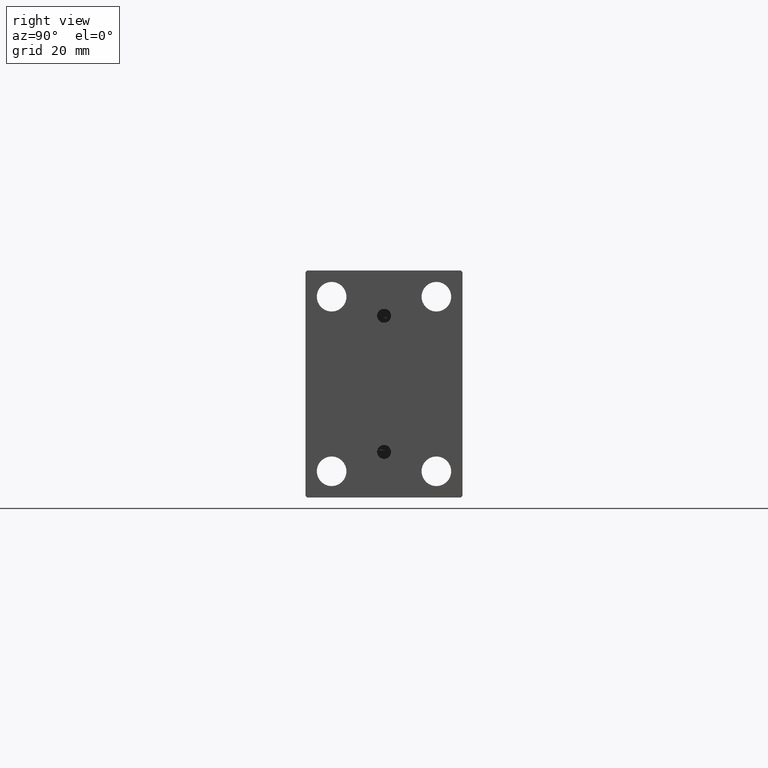
[diagram: clean part render]
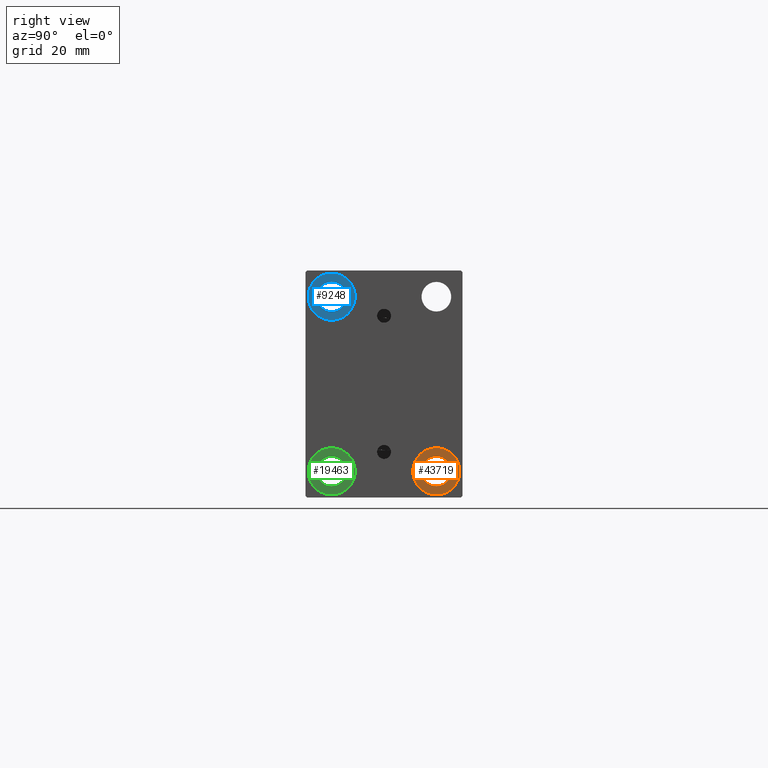
[diagram: same view with three faces highlighted in distinct colors, each labeled with its STEP entity id]
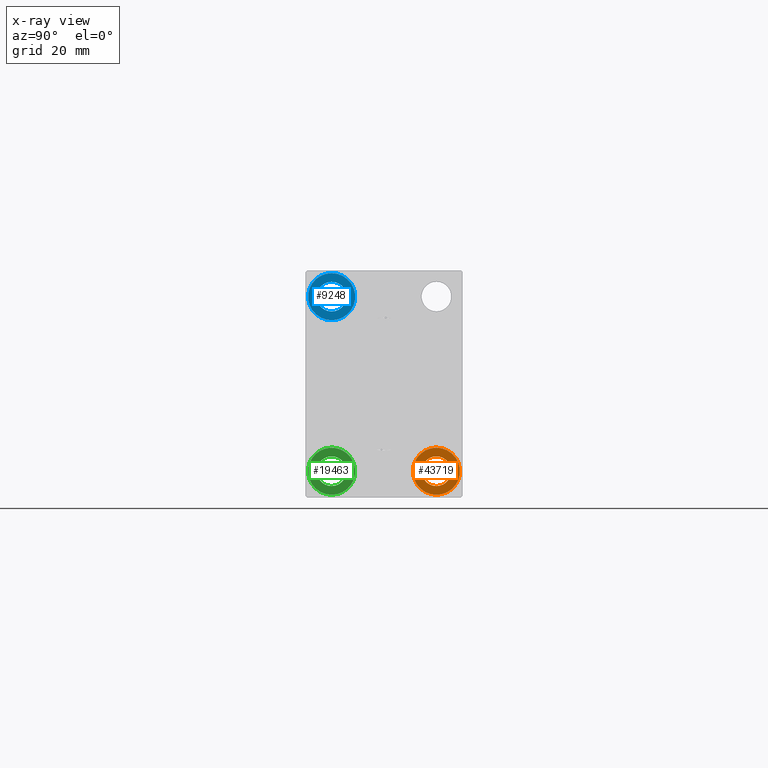
[diagram: x-ray of the same camera — body ghosted, the three highlighted faces saturated]
A machine part, right view with three faces highlighted in distinct colors.
The next image is the same camera in x-ray (body ghosted, the three faces saturated) — at least one of them is partly hidden behind the body in this view.
Their STEP definitions:

[orange] entity #43719 — the highlighted planar face has unit normal (1, 0, 0).
#2748 = VERTEX_POINT ( 'NONE', #37593 ) ;
#5035 = CARTESIAN_POINT ( 'NONE',  ( 121.0000000000000142, 14.99999999999999645, -31.75000000000000000 ) ) ;
#5754 = AXIS2_PLACEMENT_3D ( 'NONE', #35567, #38874, #31328 ) ;
#8228 = CIRCLE ( 'NONE', #11993, 4.249999999999996447 ) ;
#8777 = CIRCLE ( 'NONE', #5754, 6.749999999999999112 ) ;
#9116 = PLANE ( 'NONE',  #41510 ) ;
#9220 = AXIS2_PLACEMENT_3D ( 'NONE', #29215, #43593, #19314 ) ;
#9851 = DIRECTION ( 'NONE',  ( 0.000000000000000000, 0.000000000000000000, 1.000000000000000000 ) ) ;
#10406 = EDGE_CURVE ( 'NONE', #44276, #2748, #8228, .T. ) ;
#10451 = CARTESIAN_POINT ( 'NONE',  ( 121.0000000000000142, 14.99999999999999645, -25.00000000000000000 ) ) ;
#10805 = CARTESIAN_POINT ( 'NONE',  ( 121.0000000000000142, 14.99999999999999645, -29.25000000000000000 ) ) ;
#11993 = AXIS2_PLACEMENT_3D ( 'NONE', #34254, #37330, #33338 ) ;
#12410 = FACE_BOUND ( 'NONE', #42382, .T. ) ;
#12884 = DIRECTION ( 'NONE',  ( 0.000000000000000000, 0.000000000000000000, 1.000000000000000000 ) ) ;
#12937 = ORIENTED_EDGE ( 'NONE', *, *, #45680, .T. ) ;
#15721 = ORIENTED_EDGE ( 'NONE', *, *, #34257, .F. ) ;
#16286 = VERTEX_POINT ( 'NONE', #42526 ) ;
#17710 = EDGE_CURVE ( 'NONE', #18251, #16286, #8777, .T. ) ;
#18251 = VERTEX_POINT ( 'NONE', #5035 ) ;
#18257 = CIRCLE ( 'NONE', #9220, 4.249999999999996447 ) ;
#19314 = DIRECTION ( 'NONE',  ( 0.000000000000000000, 0.000000000000000000, -1.000000000000000000 ) ) ;
#20775 = EDGE_LOOP ( 'NONE', ( #34297, #15721 ) ) ;
#21555 = CIRCLE ( 'NONE', #29066, 6.749999999999999112 ) ;
#27764 = CARTESIAN_POINT ( 'NONE',  ( 121.0000000000000142, 14.99999999999999645, -25.00000000000000000 ) ) ;
#29066 = AXIS2_PLACEMENT_3D ( 'NONE', #27764, #42144, #9851 ) ;
#29215 = CARTESIAN_POINT ( 'NONE',  ( 121.0000000000000142, 14.99999999999999645, -25.00000000000000000 ) ) ;
#31328 = DIRECTION ( 'NONE',  ( 0.000000000000000000, 0.000000000000000000, 1.000000000000000000 ) ) ;
#33338 = DIRECTION ( 'NONE',  ( 0.000000000000000000, 0.000000000000000000, -1.000000000000000000 ) ) ;
#34254 = CARTESIAN_POINT ( 'NONE',  ( 121.0000000000000142, 14.99999999999999645, -25.00000000000000000 ) ) ;
#34257 = EDGE_CURVE ( 'NONE', #16286, #18251, #21555, .T. ) ;
#34297 = ORIENTED_EDGE ( 'NONE', *, *, #17710, .F. ) ;
#35567 = CARTESIAN_POINT ( 'NONE',  ( 121.0000000000000142, 14.99999999999999645, -25.00000000000000000 ) ) ;
#37330 = DIRECTION ( 'NONE',  ( -1.000000000000000000, -0.000000000000000000, -0.000000000000000000 ) ) ;
#37593 = CARTESIAN_POINT ( 'NONE',  ( 121.0000000000000142, 14.99999999999999645, -20.75000000000000355 ) ) ;
#37615 = FACE_OUTER_BOUND ( 'NONE', #20775, .T. ) ;
#38282 = ORIENTED_EDGE ( 'NONE', *, *, #10406, .T. ) ;
#38874 = DIRECTION ( 'NONE',  ( -1.000000000000000000, -0.000000000000000000, -0.000000000000000000 ) ) ;
#41510 = AXIS2_PLACEMENT_3D ( 'NONE', #10451, #44931, #12884 ) ;
#42144 = DIRECTION ( 'NONE',  ( -1.000000000000000000, -0.000000000000000000, -0.000000000000000000 ) ) ;
#42382 = EDGE_LOOP ( 'NONE', ( #12937, #38282 ) ) ;
#42526 = CARTESIAN_POINT ( 'NONE',  ( 121.0000000000000142, 14.99999999999999645, -18.25000000000000355 ) ) ;
#43593 = DIRECTION ( 'NONE',  ( -1.000000000000000000, -0.000000000000000000, -0.000000000000000000 ) ) ;
#43719 = ADVANCED_FACE ( 'NONE', ( #37615, #12410 ), #9116, .T. ) ;
#44276 = VERTEX_POINT ( 'NONE', #10805 ) ;
#44931 = DIRECTION ( 'NONE',  ( 1.000000000000000000, 0.000000000000000000, -0.000000000000000000 ) ) ;
#45680 = EDGE_CURVE ( 'NONE', #2748, #44276, #18257, .T. ) ;

[blue] entity #9248 — the highlighted planar face has unit normal (1, 0, 0).
#531 = DIRECTION ( 'NONE',  ( -1.000000000000000000, -0.000000000000000000, -0.000000000000000000 ) ) ;
#2103 = EDGE_LOOP ( 'NONE', ( #14667, #6504 ) ) ;
#2472 = DIRECTION ( 'NONE',  ( -1.000000000000000000, -0.000000000000000000, -0.000000000000000000 ) ) ;
#2706 = CARTESIAN_POINT ( 'NONE',  ( 121.0000000000000142, -14.99999999999999645, 25.00000000000000000 ) ) ;
#2898 = ORIENTED_EDGE ( 'NONE', *, *, #35019, .T. ) ;
#3838 = CARTESIAN_POINT ( 'NONE',  ( 121.0000000000000142, -14.99999999999999645, 20.75000000000000355 ) ) ;
#4204 = VERTEX_POINT ( 'NONE', #3838 ) ;
#4320 = DIRECTION ( 'NONE',  ( -1.000000000000000000, -0.000000000000000000, -0.000000000000000000 ) ) ;
#5153 = AXIS2_PLACEMENT_3D ( 'NONE', #16600, #31652, #19899 ) ;
#5783 = DIRECTION ( 'NONE',  ( 0.000000000000000000, 0.000000000000000000, 1.000000000000000000 ) ) ;
#6504 = ORIENTED_EDGE ( 'NONE', *, *, #14004, .F. ) ;
#8811 = EDGE_CURVE ( 'NONE', #16179, #34176, #11157, .T. ) ;
#9248 = ADVANCED_FACE ( 'NONE', ( #34719, #41565 ), #17298, .T. ) ;
#10789 = DIRECTION ( 'NONE',  ( -1.000000000000000000, -0.000000000000000000, -0.000000000000000000 ) ) ;
#11157 = CIRCLE ( 'NONE', #12664, 6.749999999999999112 ) ;
#12403 = CIRCLE ( 'NONE', #18457, 4.249999999999996447 ) ;
#12664 = AXIS2_PLACEMENT_3D ( 'NONE', #35755, #10789, #21648 ) ;
#14004 = EDGE_CURVE ( 'NONE', #34176, #16179, #21908, .T. ) ;
#14667 = ORIENTED_EDGE ( 'NONE', *, *, #8811, .F. ) ;
#16179 = VERTEX_POINT ( 'NONE', #32379 ) ;
#16600 = CARTESIAN_POINT ( 'NONE',  ( 121.0000000000000142, 0.000000000000000000, 0.000000000000000000 ) ) ;
#17298 = PLANE ( 'NONE',  #5153 ) ;
#18457 = AXIS2_PLACEMENT_3D ( 'NONE', #29504, #531, #44576 ) ;
#19899 = DIRECTION ( 'NONE',  ( 0.000000000000000000, 0.000000000000000000, 1.000000000000000000 ) ) ;
#21648 = DIRECTION ( 'NONE',  ( 0.000000000000000000, 0.000000000000000000, 1.000000000000000000 ) ) ;
#21908 = CIRCLE ( 'NONE', #36909, 6.749999999999999112 ) ;
#22499 = EDGE_LOOP ( 'NONE', ( #43794, #2898 ) ) ;
#23150 = DIRECTION ( 'NONE',  ( 0.000000000000000000, 0.000000000000000000, -1.000000000000000000 ) ) ;
#23753 = CARTESIAN_POINT ( 'NONE',  ( 121.0000000000000142, -14.99999999999999645, 31.75000000000000000 ) ) ;
#28712 = CIRCLE ( 'NONE', #36203, 4.249999999999996447 ) ;
#29504 = CARTESIAN_POINT ( 'NONE',  ( 121.0000000000000142, -14.99999999999999645, 25.00000000000000000 ) ) ;
#31457 = EDGE_CURVE ( 'NONE', #35048, #4204, #28712, .T. ) ;
#31652 = DIRECTION ( 'NONE',  ( 1.000000000000000000, 0.000000000000000000, -0.000000000000000000 ) ) ;
#32379 = CARTESIAN_POINT ( 'NONE',  ( 121.0000000000000142, -14.99999999999999645, 18.25000000000000355 ) ) ;
#34176 = VERTEX_POINT ( 'NONE', #23753 ) ;
#34719 = FACE_OUTER_BOUND ( 'NONE', #2103, .T. ) ;
#35019 = EDGE_CURVE ( 'NONE', #4204, #35048, #12403, .T. ) ;
#35048 = VERTEX_POINT ( 'NONE', #36804 ) ;
#35755 = CARTESIAN_POINT ( 'NONE',  ( 121.0000000000000142, -14.99999999999999645, 25.00000000000000000 ) ) ;
#36203 = AXIS2_PLACEMENT_3D ( 'NONE', #41051, #4320, #23150 ) ;
#36804 = CARTESIAN_POINT ( 'NONE',  ( 121.0000000000000142, -14.99999999999999645, 29.25000000000000000 ) ) ;
#36909 = AXIS2_PLACEMENT_3D ( 'NONE', #2706, #2472, #5783 ) ;
#41051 = CARTESIAN_POINT ( 'NONE',  ( 121.0000000000000142, -14.99999999999999645, 25.00000000000000000 ) ) ;
#41565 = FACE_BOUND ( 'NONE', #22499, .T. ) ;
#43794 = ORIENTED_EDGE ( 'NONE', *, *, #31457, .T. ) ;
#44576 = DIRECTION ( 'NONE',  ( 0.000000000000000000, 0.000000000000000000, -1.000000000000000000 ) ) ;

[green] entity #19463 — the highlighted planar face has unit normal (1, 0, 0).
#1005 = CIRCLE ( 'NONE', #21351, 6.749999999999999112 ) ;
#1387 = CARTESIAN_POINT ( 'NONE',  ( 121.0000000000000142, -15.00000000000000355, -25.00000000000000000 ) ) ;
#2315 = VERTEX_POINT ( 'NONE', #41302 ) ;
#4773 = AXIS2_PLACEMENT_3D ( 'NONE', #11460, #29583, #37344 ) ;
#7360 = CARTESIAN_POINT ( 'NONE',  ( 121.0000000000000142, -15.00000000000000355, -18.25000000000000355 ) ) ;
#7426 = EDGE_CURVE ( 'NONE', #17406, #35009, #21672, .T. ) ;
#7448 = DIRECTION ( 'NONE',  ( 0.000000000000000000, 0.000000000000000000, 1.000000000000000000 ) ) ;
#8304 = CARTESIAN_POINT ( 'NONE',  ( 121.0000000000000142, -15.00000000000000355, -31.75000000000000000 ) ) ;
#11263 = ORIENTED_EDGE ( 'NONE', *, *, #16085, .T. ) ;
#11460 = CARTESIAN_POINT ( 'NONE',  ( 121.0000000000000142, -15.00000000000000355, -25.00000000000000000 ) ) ;
#11610 = ORIENTED_EDGE ( 'NONE', *, *, #45630, .T. ) ;
#13736 = AXIS2_PLACEMENT_3D ( 'NONE', #1387, #44050, #26148 ) ;
#14984 = DIRECTION ( 'NONE',  ( 1.000000000000000000, 0.000000000000000000, -0.000000000000000000 ) ) ;
#16085 = EDGE_CURVE ( 'NONE', #2315, #43854, #17578, .T. ) ;
#16287 = EDGE_CURVE ( 'NONE', #35009, #17406, #1005, .T. ) ;
#17406 = VERTEX_POINT ( 'NONE', #7360 ) ;
#17514 = CIRCLE ( 'NONE', #13736, 4.249999999999996447 ) ;
#17578 = CIRCLE ( 'NONE', #4773, 4.249999999999996447 ) ;
#17838 = PLANE ( 'NONE',  #26106 ) ;
#19432 = CARTESIAN_POINT ( 'NONE',  ( 121.0000000000000142, -15.00000000000000355, -25.00000000000000000 ) ) ;
#19463 = ADVANCED_FACE ( 'NONE', ( #22065, #24890 ), #17838, .T. ) ;
#21351 = AXIS2_PLACEMENT_3D ( 'NONE', #39452, #35440, #46293 ) ;
#21672 = CIRCLE ( 'NONE', #45740, 6.749999999999999112 ) ;
#22065 = FACE_OUTER_BOUND ( 'NONE', #25857, .T. ) ;
#22948 = DIRECTION ( 'NONE',  ( 0.000000000000000000, 0.000000000000000000, 1.000000000000000000 ) ) ;
#24890 = FACE_BOUND ( 'NONE', #32698, .T. ) ;
#25857 = EDGE_LOOP ( 'NONE', ( #34779, #42401 ) ) ;
#26106 = AXIS2_PLACEMENT_3D ( 'NONE', #46578, #14984, #7448 ) ;
#26148 = DIRECTION ( 'NONE',  ( 0.000000000000000000, 0.000000000000000000, -1.000000000000000000 ) ) ;
#29583 = DIRECTION ( 'NONE',  ( -1.000000000000000000, -0.000000000000000000, -0.000000000000000000 ) ) ;
#32698 = EDGE_LOOP ( 'NONE', ( #11610, #11263 ) ) ;
#33976 = CARTESIAN_POINT ( 'NONE',  ( 121.0000000000000142, -15.00000000000000355, -20.75000000000000355 ) ) ;
#34779 = ORIENTED_EDGE ( 'NONE', *, *, #16287, .F. ) ;
#35009 = VERTEX_POINT ( 'NONE', #8304 ) ;
#35440 = DIRECTION ( 'NONE',  ( -1.000000000000000000, -0.000000000000000000, -0.000000000000000000 ) ) ;
#37344 = DIRECTION ( 'NONE',  ( 0.000000000000000000, 0.000000000000000000, -1.000000000000000000 ) ) ;
#39452 = CARTESIAN_POINT ( 'NONE',  ( 121.0000000000000142, -15.00000000000000355, -25.00000000000000000 ) ) ;
#41302 = CARTESIAN_POINT ( 'NONE',  ( 121.0000000000000142, -15.00000000000000355, -29.25000000000000000 ) ) ;
#42401 = ORIENTED_EDGE ( 'NONE', *, *, #7426, .F. ) ;
#43854 = VERTEX_POINT ( 'NONE', #33976 ) ;
#44050 = DIRECTION ( 'NONE',  ( -1.000000000000000000, -0.000000000000000000, -0.000000000000000000 ) ) ;
#44634 = DIRECTION ( 'NONE',  ( -1.000000000000000000, -0.000000000000000000, -0.000000000000000000 ) ) ;
#45630 = EDGE_CURVE ( 'NONE', #43854, #2315, #17514, .T. ) ;
#45740 = AXIS2_PLACEMENT_3D ( 'NONE', #19432, #44634, #22948 ) ;
#46293 = DIRECTION ( 'NONE',  ( 0.000000000000000000, 0.000000000000000000, 1.000000000000000000 ) ) ;
#46578 = CARTESIAN_POINT ( 'NONE',  ( 121.0000000000000142, 0.000000000000000000, 0.000000000000000000 ) ) ;